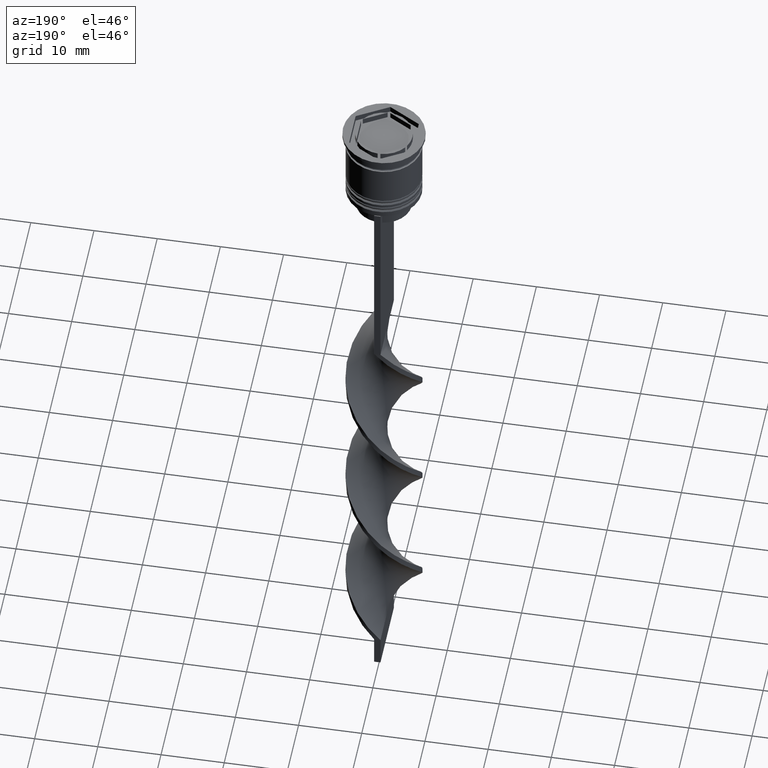
[diagram: clean part render]
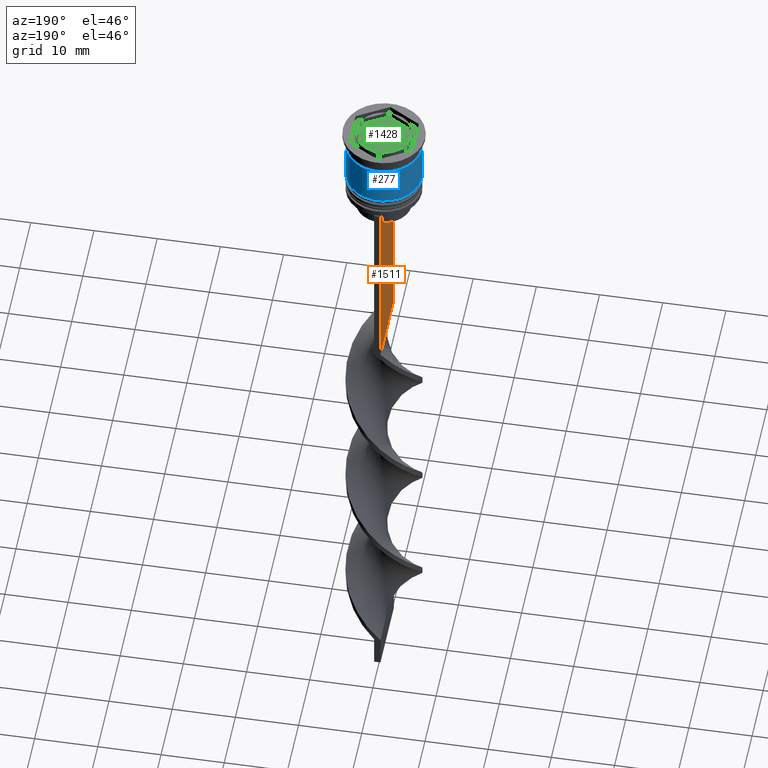
[diagram: same view with three faces highlighted in distinct colors, each labeled with its STEP entity id]
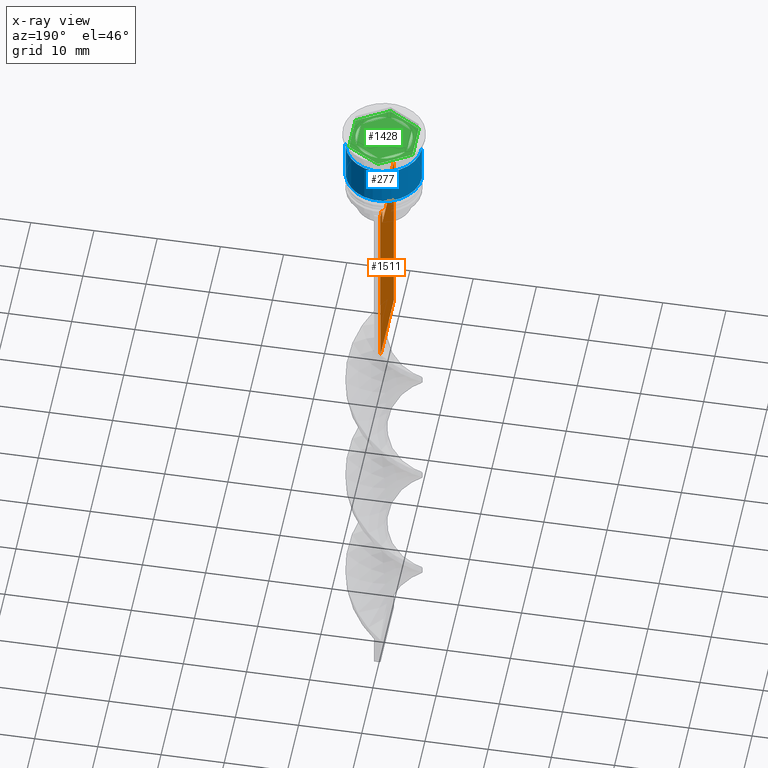
[diagram: x-ray of the same camera — body ghosted, the three highlighted faces saturated]
A machine part, auxiliary view with three faces highlighted in distinct colors.
The next image is the same camera in x-ray (body ghosted, the three faces saturated) — at least one of them is partly hidden behind the body in this view.
Their STEP definitions:

[orange] entity #1511 — the highlighted planar face has unit normal (-1, 0, 0).
#59 = LINE ( 'NONE', #3367, #1224 ) ;
#87 = VECTOR ( 'NONE', #1331, 1000.000000000000000 ) ;
#147 = ORIENTED_EDGE ( 'NONE', *, *, #160, .F. ) ;
#160 = EDGE_CURVE ( 'NONE', #173, #2696, #1802, .T. ) ;
#173 = VERTEX_POINT ( 'NONE', #1717 ) ;
#239 = VECTOR ( 'NONE', #2524, 1000.000000000000000 ) ;
#245 = DIRECTION ( 'NONE',  ( 0.000000000000000000, -1.000000000000000000, 0.000000000000000000 ) ) ;
#271 = DIRECTION ( 'NONE',  ( 0.000000000000000000, -1.000000000000000000, 0.000000000000000000 ) ) ;
#279 = VERTEX_POINT ( 'NONE', #2259 ) ;
#305 = VECTOR ( 'NONE', #245, 1000.000000000000000 ) ;
#307 = EDGE_CURVE ( 'NONE', #2082, #2021, #59, .T. ) ;
#353 = PLANE ( 'NONE',  #2873 ) ;
#360 = ORIENTED_EDGE ( 'NONE', *, *, #2087, .F. ) ;
#376 = CARTESIAN_POINT ( 'NONE',  ( -0.4999999999999997780, -4.371498598878878816, -13.00000000000000178 ) ) ;
#426 = CARTESIAN_POINT ( 'NONE',  ( -0.4999999999999997780, -6.000000000000000000, -43.50000000000000000 ) ) ;
#491 = CARTESIAN_POINT ( 'NONE',  ( -0.4999999999999997780, -6.000000000000000000, -12.50000000000000000 ) ) ;
#533 = LINE ( 'NONE', #3347, #305 ) ;
#564 = CARTESIAN_POINT ( 'NONE',  ( -0.4999999999999997780, -6.000000000000000000, -12.50000000000000000 ) ) ;
#566 = EDGE_CURVE ( 'NONE', #1764, #2021, #1438, .T. ) ;
#586 = EDGE_CURVE ( 'NONE', #2204, #2082, #1411, .T. ) ;
#596 = CARTESIAN_POINT ( 'NONE',  ( -0.4999999999999997780, 4.371498598878878816, -13.00000000000000178 ) ) ;
#604 = DIRECTION ( 'NONE',  ( 0.000000000000000000, 0.000000000000000000, -1.000000000000000000 ) ) ;
#697 = VECTOR ( 'NONE', #3281, 1000.000000000000000 ) ;
#714 = EDGE_CURVE ( 'NONE', #1723, #173, #2467, .T. ) ;
#718 = EDGE_CURVE ( 'NONE', #1764, #1723, #1960, .T. ) ;
#761 = VECTOR ( 'NONE', #1844, 1000.000000000000000 ) ;
#820 = CARTESIAN_POINT ( 'NONE',  ( -0.4999999999999997780, 4.539195634199897356, -12.83338923751318816 ) ) ;
#995 = CARTESIAN_POINT ( 'NONE',  ( -0.4999999999999997780, -4.539195586926424220, -12.83338928448044136 ) ) ;
#1125 = EDGE_CURVE ( 'NONE', #2297, #2204, #1325, .T. ) ;
#1149 = CARTESIAN_POINT ( 'NONE',  ( -0.4999999999999997780, 6.000000000000000888, -0.4584054212077061097 ) ) ;
#1224 = VECTOR ( 'NONE', #3604, 1000.000000000000000 ) ;
#1240 = CARTESIAN_POINT ( 'NONE',  ( -0.4999999999999997780, -4.874423042781576676, -12.50000000000000000 ) ) ;
#1262 = VERTEX_POINT ( 'NONE', #2523 ) ;
#1325 = LINE ( 'NONE', #2797, #1529 ) ;
#1331 = DIRECTION ( 'NONE',  ( 0.000000000000000000, 0.000000000000000000, -1.000000000000000000 ) ) ;
#1375 = ORIENTED_EDGE ( 'NONE', *, *, #586, .F. ) ;
#1402 = CARTESIAN_POINT ( 'NONE',  ( -0.4999999999999997780, 4.874423042781576676, -12.50000000000000000 ) ) ;
#1411 = LINE ( 'NONE', #2269, #239 ) ;
#1438 = LINE ( 'NONE', #1149, #3203 ) ;
#1482 = ORIENTED_EDGE ( 'NONE', *, *, #2506, .F. ) ;
#1511 = ADVANCED_FACE ( 'NONE', ( #1682 ), #353, .T. ) ;
#1529 = VECTOR ( 'NONE', #271, 1000.000000000000000 ) ;
#1565 = CARTESIAN_POINT ( 'NONE',  ( -0.4999999999999997780, -4.874423042781576676, -12.50000000000000000 ) ) ;
#1666 = CARTESIAN_POINT ( 'NONE',  ( -0.4999999999999997780, -5.878775382679627626, -12.50000000000000000 ) ) ;
#1682 = FACE_OUTER_BOUND ( 'NONE', #2956, .T. ) ;
#1717 = CARTESIAN_POINT ( 'NONE',  ( -0.4999999999999997780, 4.874423042781576676, -12.50000000000000000 ) ) ;
#1723 = VERTEX_POINT ( 'NONE', #3368 ) ;
#1764 = VERTEX_POINT ( 'NONE', #2261 ) ;
#1779 = ORIENTED_EDGE ( 'NONE', *, *, #2152, .F. ) ;
#1802 = B_SPLINE_CURVE_WITH_KNOTS ( 'NONE', 3,
 ( #1402, #2033, #820, #596 ),
 .UNSPECIFIED., .F., .F.,
 ( 4, 4 ),
 ( 0.008336552452178418518, 0.009045730124312837891 ),
 .UNSPECIFIED. ) ;
#1833 = ORIENTED_EDGE ( 'NONE', *, *, #2642, .F. ) ;
#1835 = CARTESIAN_POINT ( 'NONE',  ( -0.4999999999999997780, -6.000000000000000000, -12.50000000000000000 ) ) ;
#1844 = DIRECTION ( 'NONE',  ( -0.000000000000000000, -0.000000000000000000, 1.000000000000000000 ) ) ;
#1903 = EDGE_CURVE ( 'NONE', #1262, #279, #533, .T. ) ;
#1960 = LINE ( 'NONE', #3582, #697 ) ;
#2021 = VERTEX_POINT ( 'NONE', #2347 ) ;
#2033 = CARTESIAN_POINT ( 'NONE',  ( -0.4999999999999997780, 4.706831415367290106, -12.66671683478478982 ) ) ;
#2037 = CARTESIAN_POINT ( 'NONE',  ( -0.4999999999999997780, -6.000000000000000000, -0.4584054212077061097 ) ) ;
#2072 = CARTESIAN_POINT ( 'NONE',  ( -0.4999999999999997780, -4.371498598878878816, -13.00000000000000178 ) ) ;
#2082 = VERTEX_POINT ( 'NONE', #426 ) ;
#2087 = EDGE_CURVE ( 'NONE', #2541, #2297, #2106, .T. ) ;
#2106 = LINE ( 'NONE', #1835, #2878 ) ;
#2152 = EDGE_CURVE ( 'NONE', #2696, #1262, #2212, .T. ) ;
#2204 = VERTEX_POINT ( 'NONE', #491 ) ;
#2212 = LINE ( 'NONE', #2742, #87 ) ;
#2259 = CARTESIAN_POINT ( 'NONE',  ( -0.4999999999999997780, -4.371498598878878816, -15.50000000000000000 ) ) ;
#2261 = CARTESIAN_POINT ( 'NONE',  ( -0.4999999999999997780, 6.000000000000001776, -12.50000000000000000 ) ) ;
#2269 = CARTESIAN_POINT ( 'NONE',  ( -0.4999999999999997780, -6.000000000000000000, -0.4584054212077061097 ) ) ;
#2286 = VECTOR ( 'NONE', #2725, 1000.000000000000000 ) ;
#2287 = DIRECTION ( 'NONE',  ( -1.000000000000000000, 0.000000000000000000, 0.000000000000000000 ) ) ;
#2289 = ORIENTED_EDGE ( 'NONE', *, *, #718, .F. ) ;
#2297 = VERTEX_POINT ( 'NONE', #1666 ) ;
#2347 = CARTESIAN_POINT ( 'NONE',  ( -0.4999999999999997780, 6.000000000000000888, -43.50000000000000000 ) ) ;
#2439 = VERTEX_POINT ( 'NONE', #376 ) ;
#2467 = LINE ( 'NONE', #564, #2286 ) ;
#2506 = EDGE_CURVE ( 'NONE', #2439, #2541, #3246, .T. ) ;
#2523 = CARTESIAN_POINT ( 'NONE',  ( -0.4999999999999997780, 4.371498598878878816, -15.50000000000000000 ) ) ;
#2524 = DIRECTION ( 'NONE',  ( 0.000000000000000000, 0.000000000000000000, -1.000000000000000000 ) ) ;
#2541 = VERTEX_POINT ( 'NONE', #1565 ) ;
#2642 = EDGE_CURVE ( 'NONE', #279, #2439, #2954, .T. ) ;
#2696 = VERTEX_POINT ( 'NONE', #3333 ) ;
#2725 = DIRECTION ( 'NONE',  ( 0.000000000000000000, -1.000000000000000000, 0.000000000000000000 ) ) ;
#2742 = CARTESIAN_POINT ( 'NONE',  ( -0.4999999999999997780, 4.371498598878878816, 0.000000000000000000 ) ) ;
#2797 = CARTESIAN_POINT ( 'NONE',  ( -0.4999999999999997780, -6.000000000000000000, -12.50000000000000000 ) ) ;
#2873 = AXIS2_PLACEMENT_3D ( 'NONE', #2037, #2287, #3418 ) ;
#2878 = VECTOR ( 'NONE', #2944, 1000.000000000000000 ) ;
#2944 = DIRECTION ( 'NONE',  ( 0.000000000000000000, -1.000000000000000000, 0.000000000000000000 ) ) ;
#2954 = LINE ( 'NONE', #3498, #761 ) ;
#2956 = EDGE_LOOP ( 'NONE', ( #147, #3572, #2289, #3337, #3457, #1375, #3492, #360, #1482, #1833, #3394, #1779 ) ) ;
#2967 = CARTESIAN_POINT ( 'NONE',  ( -0.4999999999999997780, -4.706831372970964544, -12.66671687695981596 ) ) ;
#3203 = VECTOR ( 'NONE', #604, 1000.000000000000000 ) ;
#3246 = B_SPLINE_CURVE_WITH_KNOTS ( 'NONE', 3,
 ( #2072, #995, #2967, #1240 ),
 .UNSPECIFIED., .F., .F.,
 ( 4, 4 ),
 ( 0.02089901220910806920, 0.02161421017310284978 ),
 .UNSPECIFIED. ) ;
#3281 = DIRECTION ( 'NONE',  ( 0.000000000000000000, -1.000000000000000000, 0.000000000000000000 ) ) ;
#3333 = CARTESIAN_POINT ( 'NONE',  ( -0.4999999999999997780, 4.371498598878878816, -13.00000000000000178 ) ) ;
#3337 = ORIENTED_EDGE ( 'NONE', *, *, #566, .T. ) ;
#3347 = CARTESIAN_POINT ( 'NONE',  ( -0.4999999999999997780, 4.399999999999999467, -15.50000000000000000 ) ) ;
#3367 = CARTESIAN_POINT ( 'NONE',  ( -0.4999999999999997780, -6.000000000000000000, -43.50000000000000000 ) ) ;
#3368 = CARTESIAN_POINT ( 'NONE',  ( -0.4999999999999997780, 5.878775382679627626, -12.50000000000000000 ) ) ;
#3394 = ORIENTED_EDGE ( 'NONE', *, *, #1903, .F. ) ;
#3418 = DIRECTION ( 'NONE',  ( 0.000000000000000000, 0.000000000000000000, 1.000000000000000000 ) ) ;
#3457 = ORIENTED_EDGE ( 'NONE', *, *, #307, .F. ) ;
#3492 = ORIENTED_EDGE ( 'NONE', *, *, #1125, .F. ) ;
#3498 = CARTESIAN_POINT ( 'NONE',  ( -0.4999999999999997780, -4.371498598878878816, 0.000000000000000000 ) ) ;
#3572 = ORIENTED_EDGE ( 'NONE', *, *, #714, .F. ) ;
#3582 = CARTESIAN_POINT ( 'NONE',  ( -0.4999999999999997780, -6.000000000000000000, -12.50000000000000000 ) ) ;
#3604 = DIRECTION ( 'NONE',  ( 0.000000000000000000, 1.000000000000000000, 0.000000000000000000 ) ) ;

[blue] entity #277 — the highlighted cylindrical surface (partial cylindrical patch) has radius 6 mm, axis along (-0, -0, 1).
#42 = CARTESIAN_POINT ( 'NONE',  ( 6.000000000000000000, 0.000000000000000000, 0.000000000000000000 ) ) ;
#190 = EDGE_CURVE ( 'NONE', #3573, #1446, #2242, .T. ) ;
#263 = CYLINDRICAL_SURFACE ( 'NONE', #3153, 6.000000000000000000 ) ;
#277 = ADVANCED_FACE ( 'NONE', ( #2215 ), #263, .T. ) ;
#332 = EDGE_CURVE ( 'NONE', #3385, #1327, #860, .T. ) ;
#367 = AXIS2_PLACEMENT_3D ( 'NONE', #692, #1817, #2927 ) ;
#424 = CARTESIAN_POINT ( 'NONE',  ( -6.000000000000001776, 7.347880794884121708E-16, -9.000000000000001776 ) ) ;
#692 = CARTESIAN_POINT ( 'NONE',  ( 0.000000000000000000, 0.000000000000000000, -2.500000000000000444 ) ) ;
#703 = CIRCLE ( 'NONE', #367, 5.999999999999999112 ) ;
#814 = DIRECTION ( 'NONE',  ( -0.000000000000000000, -0.000000000000000000, 1.000000000000000000 ) ) ;
#860 = LINE ( 'NONE', #3345, #1276 ) ;
#878 = AXIS2_PLACEMENT_3D ( 'NONE', #2652, #2404, #2701 ) ;
#902 = DIRECTION ( 'NONE',  ( -0.000000000000000000, -0.000000000000000000, 1.000000000000000000 ) ) ;
#905 = EDGE_CURVE ( 'NONE', #3573, #3385, #2385, .T. ) ;
#1139 = CARTESIAN_POINT ( 'NONE',  ( 0.000000000000000000, 0.000000000000000000, 0.000000000000000000 ) ) ;
#1276 = VECTOR ( 'NONE', #902, 1000.000000000000000 ) ;
#1327 = VERTEX_POINT ( 'NONE', #3065 ) ;
#1446 = VERTEX_POINT ( 'NONE', #1997 ) ;
#1725 = CARTESIAN_POINT ( 'NONE',  ( 6.000000000000000888, 0.000000000000000000, -9.000000000000001776 ) ) ;
#1795 = ORIENTED_EDGE ( 'NONE', *, *, #332, .T. ) ;
#1817 = DIRECTION ( 'NONE',  ( -0.000000000000000000, -0.000000000000000000, 1.000000000000000000 ) ) ;
#1989 = DIRECTION ( 'NONE',  ( -0.000000000000000000, -0.000000000000000000, 1.000000000000000000 ) ) ;
#1997 = CARTESIAN_POINT ( 'NONE',  ( 5.999999999999999112, 0.000000000000000000, -2.500000000000000444 ) ) ;
#2075 = EDGE_CURVE ( 'NONE', #1446, #1327, #703, .T. ) ;
#2215 = FACE_OUTER_BOUND ( 'NONE', #3518, .T. ) ;
#2242 = LINE ( 'NONE', #42, #2283 ) ;
#2283 = VECTOR ( 'NONE', #1989, 1000.000000000000000 ) ;
#2385 = CIRCLE ( 'NONE', #878, 6.000000000000000888 ) ;
#2404 = DIRECTION ( 'NONE',  ( -0.000000000000000000, -0.000000000000000000, 1.000000000000000000 ) ) ;
#2489 = DIRECTION ( 'NONE',  ( 1.000000000000000000, 0.000000000000000000, 0.000000000000000000 ) ) ;
#2652 = CARTESIAN_POINT ( 'NONE',  ( 0.000000000000000000, 0.000000000000000000, -9.000000000000001776 ) ) ;
#2701 = DIRECTION ( 'NONE',  ( 1.000000000000000000, 0.000000000000000000, 0.000000000000000000 ) ) ;
#2927 = DIRECTION ( 'NONE',  ( 1.000000000000000000, 0.000000000000000000, 0.000000000000000000 ) ) ;
#2986 = ORIENTED_EDGE ( 'NONE', *, *, #905, .T. ) ;
#3065 = CARTESIAN_POINT ( 'NONE',  ( -5.999999999999999112, 7.347880794884118750E-16, -2.500000000000000444 ) ) ;
#3153 = AXIS2_PLACEMENT_3D ( 'NONE', #1139, #814, #2489 ) ;
#3345 = CARTESIAN_POINT ( 'NONE',  ( -6.000000000000000000, 7.347880794884119736E-16, 0.000000000000000000 ) ) ;
#3385 = VERTEX_POINT ( 'NONE', #424 ) ;
#3419 = ORIENTED_EDGE ( 'NONE', *, *, #2075, .F. ) ;
#3518 = EDGE_LOOP ( 'NONE', ( #2986, #1795, #3419, #3550 ) ) ;
#3550 = ORIENTED_EDGE ( 'NONE', *, *, #190, .F. ) ;
#3573 = VERTEX_POINT ( 'NONE', #1725 ) ;

[green] entity #1428 — the highlighted planar face has unit normal (0, 0, 1).
#3 = DIRECTION ( 'NONE',  ( 0.000000000000000000, 0.000000000000000000, 1.000000000000000000 ) ) ;
#4 = CARTESIAN_POINT ( 'NONE',  ( 0.000000000000000000, 0.000000000000000000, -1.000000000000000000 ) ) ;
#25 = ORIENTED_EDGE ( 'NONE', *, *, #1146, .F. ) ;
#26 = ORIENTED_EDGE ( 'NONE', *, *, #1495, .F. ) ;
#31 = DIRECTION ( 'NONE',  ( 0.000000000000000000, 0.000000000000000000, 1.000000000000000000 ) ) ;
#51 = DIRECTION ( 'NONE',  ( 1.000000000000000000, 0.000000000000000000, -0.000000000000000000 ) ) ;
#57 = VERTEX_POINT ( 'NONE', #1228 ) ;
#68 = ORIENTED_EDGE ( 'NONE', *, *, #3509, .F. ) ;
#118 = ORIENTED_EDGE ( 'NONE', *, *, #779, .F. ) ;
#141 = EDGE_LOOP ( 'NONE', ( #25, #2711 ) ) ;
#228 = CARTESIAN_POINT ( 'NONE',  ( 5.000000000000000000, -2.886751345948128655, -1.000000000000000000 ) ) ;
#241 = DIRECTION ( 'NONE',  ( -0.8660254037844387076, -0.4999999999999998890, 0.000000000000000000 ) ) ;
#242 = AXIS2_PLACEMENT_3D ( 'NONE', #1386, #3, #2497 ) ;
#243 = CARTESIAN_POINT ( 'NONE',  ( 5.000000000000000888, 2.886751345948129543, -1.000000000000000000 ) ) ;
#259 = CARTESIAN_POINT ( 'NONE',  ( -8.673617379884035472E-16, -4.618802153517006737, -1.000000000000000888 ) ) ;
#260 = CARTESIAN_POINT ( 'NONE',  ( 5.000000000000000888, 2.886751345948129543, -1.000000000000000000 ) ) ;
#276 = CARTESIAN_POINT ( 'NONE',  ( 0.000000000000000000, 0.000000000000000000, -1.000000000000000000 ) ) ;
#292 = FACE_BOUND ( 'NONE', #141, .T. ) ;
#310 = DIRECTION ( 'NONE',  ( 0.8660254037844385966, 0.4999999999999998890, 0.000000000000000000 ) ) ;
#318 = FACE_BOUND ( 'NONE', #2117, .T. ) ;
#336 = FACE_BOUND ( 'NONE', #915, .T. ) ;
#343 = CARTESIAN_POINT ( 'NONE',  ( 0.2146428928642876155, 4.494878021542170643, -1.000000000000000888 ) ) ;
#351 = CARTESIAN_POINT ( 'NONE',  ( 4.000000000000000000, 2.309401076758504257, -1.000000000000000888 ) ) ;
#379 = VERTEX_POINT ( 'NONE', #2683 ) ;
#404 = CARTESIAN_POINT ( 'NONE',  ( -5.000000000000000888, -2.886751345948129543, -1.000000000000000000 ) ) ;
#416 = VECTOR ( 'NONE', #1737, 1000.000000000000000 ) ;
#420 = LINE ( 'NONE', #1507, #938 ) ;
#425 = VECTOR ( 'NONE', #3110, 1000.000000000000227 ) ;
#471 = EDGE_CURVE ( 'NONE', #1535, #728, #1863, .T. ) ;
#481 = VERTEX_POINT ( 'NONE', #841 ) ;
#482 = VERTEX_POINT ( 'NONE', #1120 ) ;
#513 = EDGE_CURVE ( 'NONE', #728, #1535, #2240, .T. ) ;
#527 = CIRCLE ( 'NONE', #242, 4.500000000000000888 ) ;
#551 = CARTESIAN_POINT ( 'NONE',  ( 4.336808689942017736E-16, 4.618802153517006737, -1.000000000000000888 ) ) ;
#582 = CARTESIAN_POINT ( 'NONE',  ( 0.000000000000000000, 0.000000000000000000, -1.000000000000000000 ) ) ;
#623 = CARTESIAN_POINT ( 'NONE',  ( -4.500000000000000888, 0.000000000000000000, -1.000000000000000000 ) ) ;
#630 = VERTEX_POINT ( 'NONE', #1351 ) ;
#635 = CARTESIAN_POINT ( 'NONE',  ( -4.000000000000000000, -2.309401076758503368, -1.000000000000000888 ) ) ;
#656 = CARTESIAN_POINT ( 'NONE',  ( -4.000000000000000000, 2.309401076758502924, -1.000000000000000888 ) ) ;
#722 = EDGE_LOOP ( 'NONE', ( #1265, #26 ) ) ;
#728 = VERTEX_POINT ( 'NONE', #1072 ) ;
#739 = VERTEX_POINT ( 'NONE', #1391 ) ;
#775 = VERTEX_POINT ( 'NONE', #2765 ) ;
#779 = EDGE_CURVE ( 'NONE', #871, #775, #2782, .T. ) ;
#782 = EDGE_CURVE ( 'NONE', #3247, #2096, #1174, .T. ) ;
#829 = LINE ( 'NONE', #1028, #2515 ) ;
#841 = CARTESIAN_POINT ( 'NONE',  ( -4.000000000000000000, 2.061552812808831625, -1.000000000000000888 ) ) ;
#853 = DIRECTION ( 'NONE',  ( 0.000000000000000000, 0.000000000000000000, 1.000000000000000000 ) ) ;
#866 = DIRECTION ( 'NONE',  ( 0.8660254037844387076, -0.4999999999999998335, 0.000000000000000000 ) ) ;
#871 = VERTEX_POINT ( 'NONE', #1857 ) ;
#882 = AXIS2_PLACEMENT_3D ( 'NONE', #2821, #1956, #51 ) ;
#915 = EDGE_LOOP ( 'NONE', ( #2311, #1310 ) ) ;
#938 = VECTOR ( 'NONE', #3236, 1000.000000000000000 ) ;
#941 = ORIENTED_EDGE ( 'NONE', *, *, #1230, .F. ) ;
#959 = EDGE_CURVE ( 'NONE', #3114, #2247, #829, .T. ) ;
#990 = VECTOR ( 'NONE', #310, 1000.000000000000227 ) ;
#997 = VECTOR ( 'NONE', #3012, 1000.000000000000114 ) ;
#1014 = ORIENTED_EDGE ( 'NONE', *, *, #2834, .F. ) ;
#1028 = CARTESIAN_POINT ( 'NONE',  ( 5.000000000000000000, -2.886751345948128655, -1.000000000000000000 ) ) ;
#1072 = CARTESIAN_POINT ( 'NONE',  ( -3.785357107135713939, 2.433325208733339018, -1.000000000000000888 ) ) ;
#1109 = CARTESIAN_POINT ( 'NONE',  ( -5.000000000000000888, -2.886751345948129543, -1.000000000000000000 ) ) ;
#1120 = CARTESIAN_POINT ( 'NONE',  ( -0.2146428928642871992, -4.494878021542169755, -1.000000000000000888 ) ) ;
#1132 = DIRECTION ( 'NONE',  ( 1.000000000000000000, 0.000000000000000000, 0.000000000000000000 ) ) ;
#1146 = EDGE_CURVE ( 'NONE', #57, #482, #527, .T. ) ;
#1151 = EDGE_LOOP ( 'NONE', ( #2767, #118 ) ) ;
#1174 = CIRCLE ( 'NONE', #1525, 4.500000000000000888 ) ;
#1178 = AXIS2_PLACEMENT_3D ( 'NONE', #4, #31, #1132 ) ;
#1185 = CARTESIAN_POINT ( 'NONE',  ( 0.000000000000000000, 5.773502691896257311, -1.000000000000000000 ) ) ;
#1196 = DIRECTION ( 'NONE',  ( 0.000000000000000000, 0.000000000000000000, 1.000000000000000000 ) ) ;
#1197 = EDGE_CURVE ( 'NONE', #739, #3121, #3376, .T. ) ;
#1202 = DIRECTION ( 'NONE',  ( -0.8660254037844387076, -0.4999999999999998890, 0.000000000000000000 ) ) ;
#1228 = CARTESIAN_POINT ( 'NONE',  ( -3.785357107135713939, -2.433325208733338130, -1.000000000000000888 ) ) ;
#1230 = EDGE_CURVE ( 'NONE', #2987, #481, #2036, .T. ) ;
#1265 = ORIENTED_EDGE ( 'NONE', *, *, #782, .F. ) ;
#1305 = ORIENTED_EDGE ( 'NONE', *, *, #1197, .T. ) ;
#1310 = ORIENTED_EDGE ( 'NONE', *, *, #513, .F. ) ;
#1342 = EDGE_CURVE ( 'NONE', #379, #3114, #1404, .T. ) ;
#1351 = CARTESIAN_POINT ( 'NONE',  ( 3.785357107135712162, 2.433325208733341238, -1.000000000000000888 ) ) ;
#1379 = DIRECTION ( 'NONE',  ( 0.8660254037844385966, 0.5000000000000001110, -0.000000000000000000 ) ) ;
#1386 = CARTESIAN_POINT ( 'NONE',  ( 0.000000000000000000, 0.000000000000000000, -1.000000000000000000 ) ) ;
#1391 = CARTESIAN_POINT ( 'NONE',  ( 0.000000000000000000, 5.773502691896257311, -1.000000000000000000 ) ) ;
#1404 = LINE ( 'NONE', #1695, #990 ) ;
#1416 = VECTOR ( 'NONE', #1202, 1000.000000000000114 ) ;
#1428 = ADVANCED_FACE ( 'NONE', ( #1472, #3398, #1439, #292, #318, #336, #2546 ), #3378, .T. ) ;
#1435 = VERTEX_POINT ( 'NONE', #623 ) ;
#1439 = FACE_BOUND ( 'NONE', #1151, .T. ) ;
#1472 = FACE_BOUND ( 'NONE', #1605, .T. ) ;
#1474 = EDGE_LOOP ( 'NONE', ( #1810, #1305, #2416, #1659, #1780, #2296 ) ) ;
#1495 = EDGE_CURVE ( 'NONE', #2096, #3247, #2579, .T. ) ;
#1507 = CARTESIAN_POINT ( 'NONE',  ( -5.000000000000000888, 2.886751345948128655, -1.000000000000000000 ) ) ;
#1525 = AXIS2_PLACEMENT_3D ( 'NONE', #276, #2502, #3341 ) ;
#1530 = EDGE_CURVE ( 'NONE', #481, #1435, #3319, .T. ) ;
#1535 = VERTEX_POINT ( 'NONE', #1976 ) ;
#1590 = CIRCLE ( 'NONE', #1832, 4.500000000000000888 ) ;
#1603 = DIRECTION ( 'NONE',  ( 1.502314598737159278E-16, 1.000000000000000000, 0.000000000000000000 ) ) ;
#1605 = EDGE_LOOP ( 'NONE', ( #68, #2925 ) ) ;
#1659 = ORIENTED_EDGE ( 'NONE', *, *, #2316, .T. ) ;
#1695 = CARTESIAN_POINT ( 'NONE',  ( 5.612359739892467248E-18, -5.773502691896257311, -1.000000000000000000 ) ) ;
#1737 = DIRECTION ( 'NONE',  ( 0.000000000000000000, 1.000000000000000000, 0.000000000000000000 ) ) ;
#1778 = AXIS2_PLACEMENT_3D ( 'NONE', #582, #853, #3146 ) ;
#1780 = ORIENTED_EDGE ( 'NONE', *, *, #1342, .T. ) ;
#1787 = DIRECTION ( 'NONE',  ( 1.000000000000000000, 0.000000000000000000, 0.000000000000000000 ) ) ;
#1810 = ORIENTED_EDGE ( 'NONE', *, *, #2199, .T. ) ;
#1832 = AXIS2_PLACEMENT_3D ( 'NONE', #2279, #1196, #1787 ) ;
#1857 = CARTESIAN_POINT ( 'NONE',  ( 3.785357107135712162, -2.433325208733341238, -1.000000000000000888 ) ) ;
#1863 = CIRCLE ( 'NONE', #2508, 4.500000000000000888 ) ;
#1865 = VECTOR ( 'NONE', #241, 1000.000000000000114 ) ;
#1924 = DIRECTION ( 'NONE',  ( 1.000000000000000000, 0.000000000000000000, 0.000000000000000000 ) ) ;
#1940 = CARTESIAN_POINT ( 'NONE',  ( 3.999999999999999112, 2.061552812808832513, -1.000000000000000888 ) ) ;
#1942 = VECTOR ( 'NONE', #866, 1000.000000000000114 ) ;
#1956 = DIRECTION ( 'NONE',  ( 0.000000000000000000, 0.000000000000000000, 1.000000000000000000 ) ) ;
#1976 = CARTESIAN_POINT ( 'NONE',  ( -0.2146428928642867551, 4.494878021542170643, -1.000000000000000888 ) ) ;
#2013 = CIRCLE ( 'NONE', #2887, 4.500000000000000888 ) ;
#2036 = LINE ( 'NONE', #656, #416 ) ;
#2096 = VERTEX_POINT ( 'NONE', #1940 ) ;
#2117 = EDGE_LOOP ( 'NONE', ( #3585, #941, #1014 ) ) ;
#2199 = EDGE_CURVE ( 'NONE', #2247, #739, #2998, .T. ) ;
#2201 = CARTESIAN_POINT ( 'NONE',  ( -4.000000000000000000, -2.061552812808831625, -1.000000000000000888 ) ) ;
#2227 = CARTESIAN_POINT ( 'NONE',  ( 3.999999999999999112, -2.309401076758503812, -1.000000000000000888 ) ) ;
#2240 = LINE ( 'NONE', #551, #3555 ) ;
#2247 = VERTEX_POINT ( 'NONE', #260 ) ;
#2267 = LINE ( 'NONE', #351, #1942 ) ;
#2279 = CARTESIAN_POINT ( 'NONE',  ( 0.000000000000000000, 0.000000000000000000, -1.000000000000000000 ) ) ;
#2296 = ORIENTED_EDGE ( 'NONE', *, *, #959, .T. ) ;
#2311 = ORIENTED_EDGE ( 'NONE', *, *, #471, .F. ) ;
#2316 = EDGE_CURVE ( 'NONE', #2629, #379, #2501, .T. ) ;
#2416 = ORIENTED_EDGE ( 'NONE', *, *, #2603, .T. ) ;
#2435 = LINE ( 'NONE', #635, #425 ) ;
#2497 = DIRECTION ( 'NONE',  ( 1.000000000000000000, 0.000000000000000000, 0.000000000000000000 ) ) ;
#2501 = LINE ( 'NONE', #1109, #997 ) ;
#2502 = DIRECTION ( 'NONE',  ( 0.000000000000000000, 0.000000000000000000, 1.000000000000000000 ) ) ;
#2508 = AXIS2_PLACEMENT_3D ( 'NONE', #3062, #3348, #1924 ) ;
#2515 = VECTOR ( 'NONE', #1603, 1000.000000000000000 ) ;
#2546 = FACE_OUTER_BOUND ( 'NONE', #1474, .T. ) ;
#2579 = LINE ( 'NONE', #2227, #2815 ) ;
#2603 = EDGE_CURVE ( 'NONE', #3121, #2629, #420, .T. ) ;
#2618 = CARTESIAN_POINT ( 'NONE',  ( 3.999999999999999112, -2.061552812808833846, -1.000000000000000888 ) ) ;
#2629 = VERTEX_POINT ( 'NONE', #404 ) ;
#2683 = CARTESIAN_POINT ( 'NONE',  ( 5.612359739892467248E-18, -5.773502691896257311, -1.000000000000000000 ) ) ;
#2693 = CARTESIAN_POINT ( 'NONE',  ( -5.000000000000000888, 2.886751345948128655, -1.000000000000000000 ) ) ;
#2711 = ORIENTED_EDGE ( 'NONE', *, *, #2853, .F. ) ;
#2765 = CARTESIAN_POINT ( 'NONE',  ( 0.2146428928642876155, -4.494878021542170643, -1.000000000000000888 ) ) ;
#2767 = ORIENTED_EDGE ( 'NONE', *, *, #3252, .F. ) ;
#2782 = LINE ( 'NONE', #259, #1865 ) ;
#2815 = VECTOR ( 'NONE', #3091, 1000.000000000000000 ) ;
#2821 = CARTESIAN_POINT ( 'NONE',  ( 0.000000000000000000, 0.000000000000000000, -1.000000000000000000 ) ) ;
#2834 = EDGE_CURVE ( 'NONE', #1435, #2987, #2013, .T. ) ;
#2853 = EDGE_CURVE ( 'NONE', #482, #57, #2435, .T. ) ;
#2876 = EDGE_CURVE ( 'NONE', #3187, #630, #2267, .T. ) ;
#2887 = AXIS2_PLACEMENT_3D ( 'NONE', #3308, #2990, #3047 ) ;
#2925 = ORIENTED_EDGE ( 'NONE', *, *, #2876, .F. ) ;
#2987 = VERTEX_POINT ( 'NONE', #2201 ) ;
#2990 = DIRECTION ( 'NONE',  ( 0.000000000000000000, 0.000000000000000000, 1.000000000000000000 ) ) ;
#2998 = LINE ( 'NONE', #243, #3046 ) ;
#3012 = DIRECTION ( 'NONE',  ( 0.8660254037844387076, -0.4999999999999997224, 0.000000000000000000 ) ) ;
#3046 = VECTOR ( 'NONE', #3583, 1000.000000000000114 ) ;
#3047 = DIRECTION ( 'NONE',  ( 1.000000000000000000, 0.000000000000000000, 0.000000000000000000 ) ) ;
#3062 = CARTESIAN_POINT ( 'NONE',  ( 0.000000000000000000, 0.000000000000000000, -1.000000000000000000 ) ) ;
#3091 = DIRECTION ( 'NONE',  ( -1.877893248421448296E-16, -1.000000000000000000, 0.000000000000000000 ) ) ;
#3110 = DIRECTION ( 'NONE',  ( -0.8660254037844384856, 0.5000000000000001110, 0.000000000000000000 ) ) ;
#3114 = VERTEX_POINT ( 'NONE', #228 ) ;
#3121 = VERTEX_POINT ( 'NONE', #2693 ) ;
#3146 = DIRECTION ( 'NONE',  ( 1.000000000000000000, 0.000000000000000000, 0.000000000000000000 ) ) ;
#3187 = VERTEX_POINT ( 'NONE', #343 ) ;
#3236 = DIRECTION ( 'NONE',  ( 0.000000000000000000, -1.000000000000000000, 0.000000000000000000 ) ) ;
#3247 = VERTEX_POINT ( 'NONE', #2618 ) ;
#3252 = EDGE_CURVE ( 'NONE', #775, #871, #1590, .T. ) ;
#3308 = CARTESIAN_POINT ( 'NONE',  ( 0.000000000000000000, 0.000000000000000000, -1.000000000000000000 ) ) ;
#3319 = CIRCLE ( 'NONE', #1178, 4.500000000000000888 ) ;
#3339 = CIRCLE ( 'NONE', #1778, 4.500000000000000888 ) ;
#3341 = DIRECTION ( 'NONE',  ( 1.000000000000000000, 0.000000000000000000, 0.000000000000000000 ) ) ;
#3348 = DIRECTION ( 'NONE',  ( 0.000000000000000000, 0.000000000000000000, 1.000000000000000000 ) ) ;
#3376 = LINE ( 'NONE', #1185, #1416 ) ;
#3378 = PLANE ( 'NONE',  #882 ) ;
#3398 = FACE_BOUND ( 'NONE', #722, .T. ) ;
#3509 = EDGE_CURVE ( 'NONE', #630, #3187, #3339, .T. ) ;
#3555 = VECTOR ( 'NONE', #1379, 1000.000000000000114 ) ;
#3583 = DIRECTION ( 'NONE',  ( -0.8660254037844387076, 0.4999999999999997224, 0.000000000000000000 ) ) ;
#3585 = ORIENTED_EDGE ( 'NONE', *, *, #1530, .F. ) ;